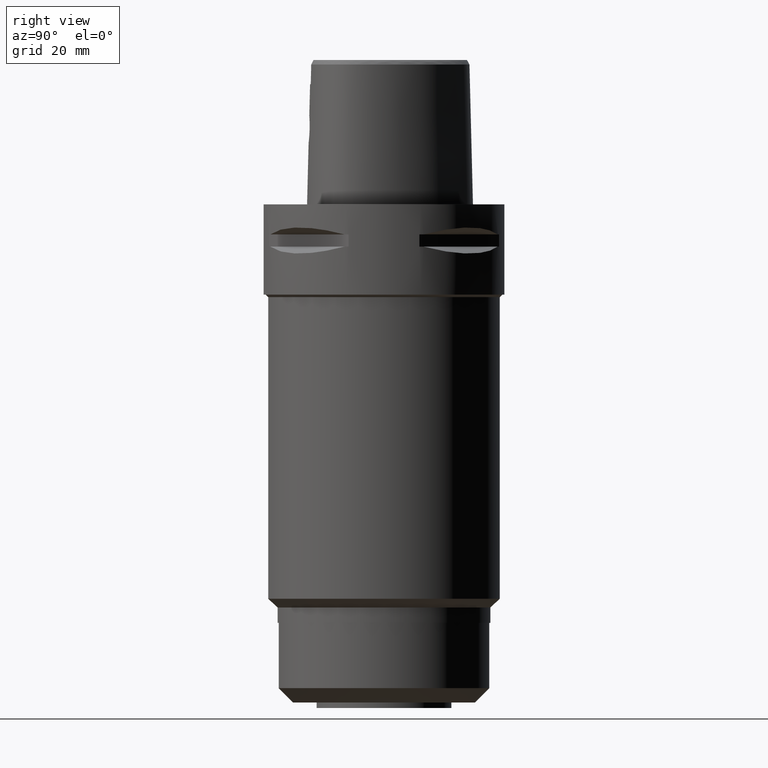
[diagram: clean part render]
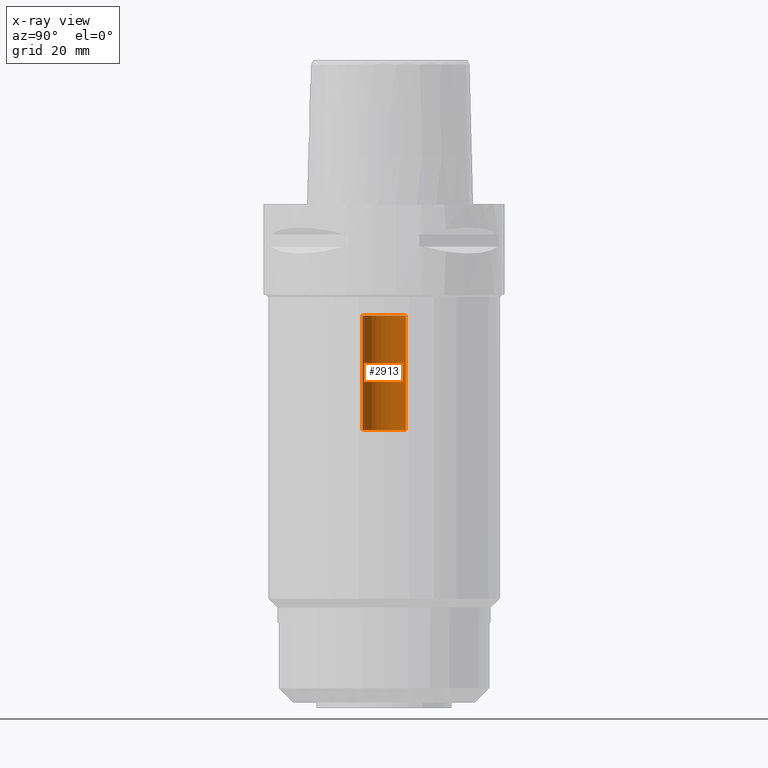
[diagram: x-ray — body ghosted, one internal face saturated and labeled with its STEP entity id]
A machine part, right view, then the same camera in x-ray: the body is ghosted and one INTERNAL B-rep face — a face not visible from any outside direction — is saturated and labeled: STEP entity #2913.
In plain terms, the highlighted cylindrical surface (edge-blend (fillet) strip) has radius 7.25 mm, axis along (0, 0, -1).
Its self-contained STEP definition (entity closure, byte-faithful):
#808=CARTESIAN_POINT('',(0.E0,1.327149736236E-14,-7.5E1));
#809=DIRECTION('',(0.E0,0.E0,-1.E0));
#810=DIRECTION('',(0.E0,-1.E0,0.E0));
#811=AXIS2_PLACEMENT_3D('',#808,#809,#810);
#824=DIRECTION('',(0.E0,0.E0,1.E0));
#825=VECTOR('',#824,3.8E1);
#826=CARTESIAN_POINT('',(0.E0,-7.25E0,-7.5E1));
#827=LINE('',#826,#825);
#831=DIRECTION('',(0.E0,0.E0,1.E0));
#832=VECTOR('',#831,3.8E1);
#833=CARTESIAN_POINT('',(0.E0,7.25E0,-7.5E1));
#834=LINE('',#833,#832);
#862=CARTESIAN_POINT('',(0.E0,1.327149736236E-14,-3.7E1));
#863=DIRECTION('',(0.E0,0.E0,1.E0));
#864=DIRECTION('',(0.E0,1.E0,0.E0));
#865=AXIS2_PLACEMENT_3D('',#862,#863,#864);
#1693=CARTESIAN_POINT('',(0.E0,-7.25E0,-7.5E1));
#1694=CARTESIAN_POINT('',(0.E0,7.25E0,-7.5E1));
#1695=VERTEX_POINT('',#1693);
#1696=VERTEX_POINT('',#1694);
#1697=CARTESIAN_POINT('',(0.E0,7.25E0,-3.7E1));
#1698=VERTEX_POINT('',#1697);
#1699=CARTESIAN_POINT('',(0.E0,-7.25E0,-3.7E1));
#1700=VERTEX_POINT('',#1699);
#2899=CARTESIAN_POINT('',(0.E0,1.327149736236E-14,8.37E0));
#2900=DIRECTION('',(0.E0,0.E0,-1.E0));
#2901=DIRECTION('',(0.E0,-1.E0,0.E0));
#2902=AXIS2_PLACEMENT_3D('',#2899,#2900,#2901);
#2903=CYLINDRICAL_SURFACE('',#2902,7.25E0);
#2905=ORIENTED_EDGE('',*,*,#2904,.F.);
#2906=ORIENTED_EDGE('',*,*,#2892,.F.);
#2908=ORIENTED_EDGE('',*,*,#2907,.T.);
#2910=ORIENTED_EDGE('',*,*,#2909,.F.);
#2911=EDGE_LOOP('',(#2905,#2906,#2908,#2910));
#2912=FACE_OUTER_BOUND('',#2911,.F.);
#812=CIRCLE('',#811,7.25E0);
#866=CIRCLE('',#865,7.25E0);
#2892=EDGE_CURVE('',#1695,#1696,#812,.T.);
#2904=EDGE_CURVE('',#1696,#1698,#834,.T.);
#2907=EDGE_CURVE('',#1695,#1700,#827,.T.);
#2909=EDGE_CURVE('',#1698,#1700,#866,.T.);
#2913=ADVANCED_FACE('',(#2912),#2903,.F.);